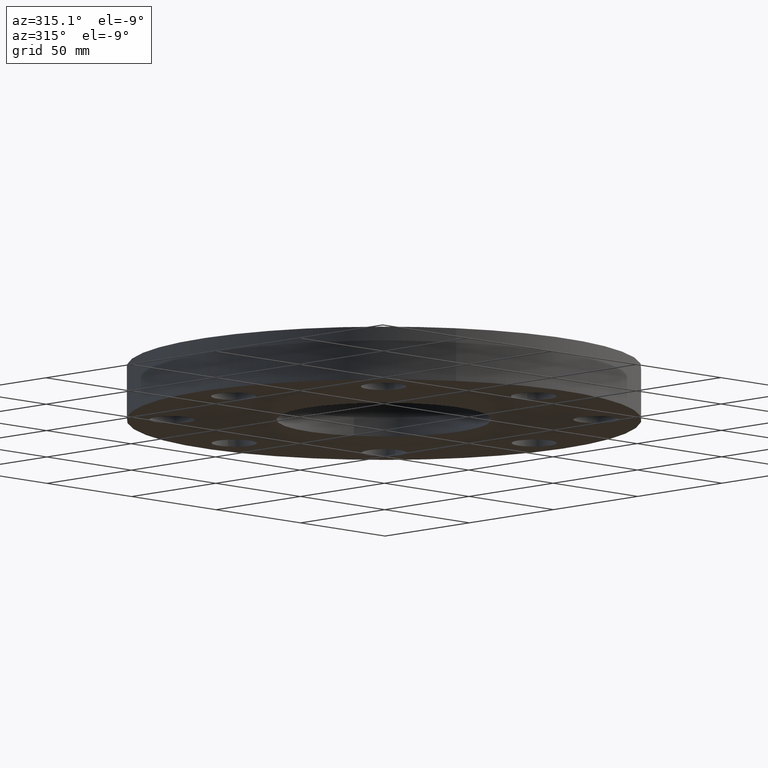
[diagram: clean part render]
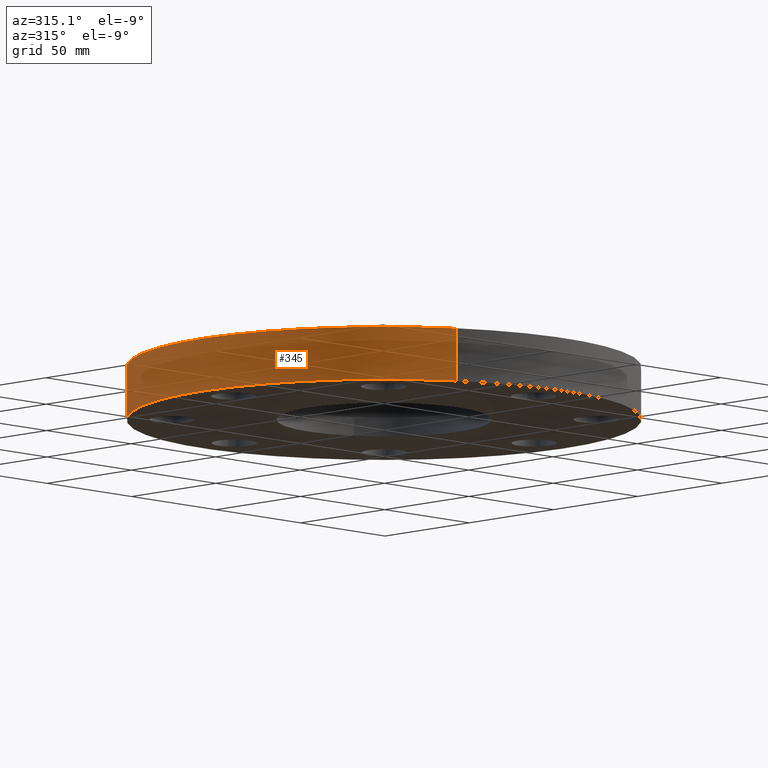
[diagram: same view with one face highlighted and labeled with its STEP entity id]
A machine part, auxiliary view. The second image highlights one B-rep face of the part: STEP entity #345.
In plain terms, the highlighted cylindrical surface (partial cylindrical patch) has radius 107.95 mm, axis along (0, 0, -1).
Its self-contained STEP definition (entity closure, byte-faithful):
#150=AXIS2_PLACEMENT_3D('Circle Axis2P3D',#148,#149,$) ;
#318=AXIS2_PLACEMENT_3D('Cylinder Axis2P3D',#315,#316,#317) ;
#329=AXIS2_PLACEMENT_3D('Circle Axis2P3D',#327,#328,$) ;
#148=CARTESIAN_POINT('Axis2P3D Location',(0.,0.,0.)) ;
#152=CARTESIAN_POINT('Vertex',(-2.03755853908,-3.72972588805,5.59482469102E-016)) ;
#154=CARTESIAN_POINT('Vertex',(2.03755853908,3.72972588805,5.59482469102E-016)) ;
#315=CARTESIAN_POINT('Axis2P3D Location',(0.,0.,0.595000000002)) ;
#320=CARTESIAN_POINT('Line Origine',(-2.03755853908,-3.72972588805,0.440000000002)) ;
#324=CARTESIAN_POINT('Vertex',(-2.03755853908,-3.72972588805,0.880000000004)) ;
#327=CARTESIAN_POINT('Axis2P3D Location',(0.,0.,0.880000000004)) ;
#331=CARTESIAN_POINT('Vertex',(2.03755853908,3.72972588805,0.880000000004)) ;
#334=CARTESIAN_POINT('Line Origine',(2.03755853908,3.72972588805,0.440000000002)) ;
#149=DIRECTION('Axis2P3D Direction',(0.,0.,-0.0393700787402)) ;
#316=DIRECTION('Axis2P3D Direction',(0.,0.,-0.0393700787402)) ;
#317=DIRECTION('Axis2P3D XDirection',(0.0188750212049,0.0345504945626,0.)) ;
#321=DIRECTION('Vector Direction',(0.,0.,-0.0393700787402)) ;
#328=DIRECTION('Axis2P3D Direction',(0.,0.,-0.0393700787402)) ;
#335=DIRECTION('Vector Direction',(0.,0.,-0.0393700787402)) ;
#322=VECTOR('Line Direction',#321,0.0393700787402) ;
#336=VECTOR('Line Direction',#335,0.0393700787402) ;
#340=ORIENTED_EDGE('',*,*,#156,.F.) ;
#341=ORIENTED_EDGE('',*,*,#326,.T.) ;
#342=ORIENTED_EDGE('',*,*,#333,.T.) ;
#343=ORIENTED_EDGE('',*,*,#338,.F.) ;
#345=ADVANCED_FACE('PartBody',(#344),#319,.T.) ;
#151=CIRCLE('generated circle',#150,4.25000000002) ;
#330=CIRCLE('generated circle',#329,4.25000000002) ;
#319=CYLINDRICAL_SURFACE('generated cylinder',#318,4.25000000002) ;
#156=EDGE_CURVE('',#153,#155,#151,.T.) ;
#326=EDGE_CURVE('',#153,#325,#323,.F.) ;
#333=EDGE_CURVE('',#325,#332,#330,.T.) ;
#338=EDGE_CURVE('',#155,#332,#337,.F.) ;
#339=EDGE_LOOP('',(#340,#341,#342,#343)) ;
#344=FACE_OUTER_BOUND('',#339,.T.) ;
#323=LINE('Line',#320,#322) ;
#337=LINE('Line',#334,#336) ;
#153=VERTEX_POINT('',#152) ;
#155=VERTEX_POINT('',#154) ;
#325=VERTEX_POINT('',#324) ;
#332=VERTEX_POINT('',#331) ;